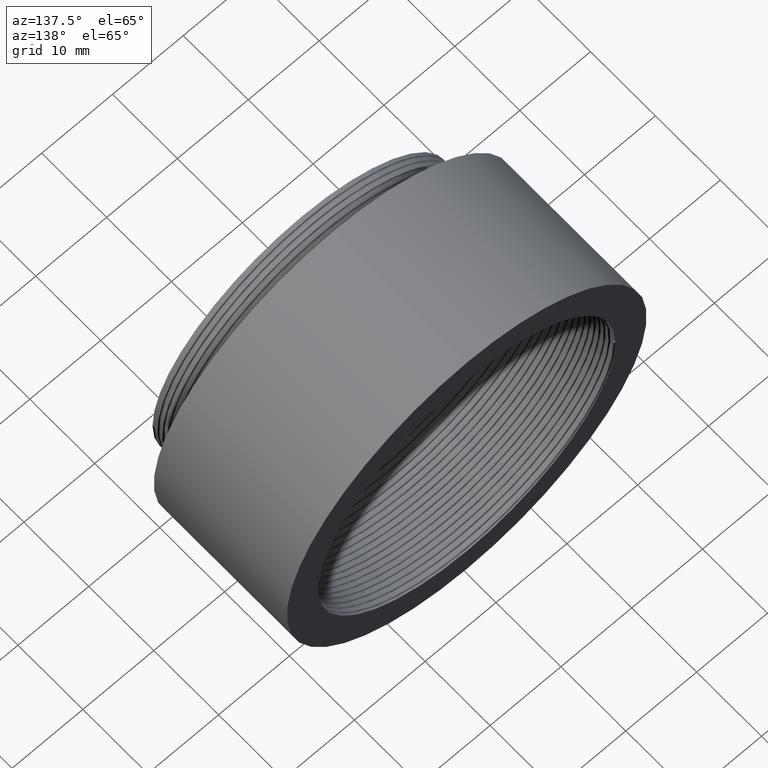
[diagram: clean part render]
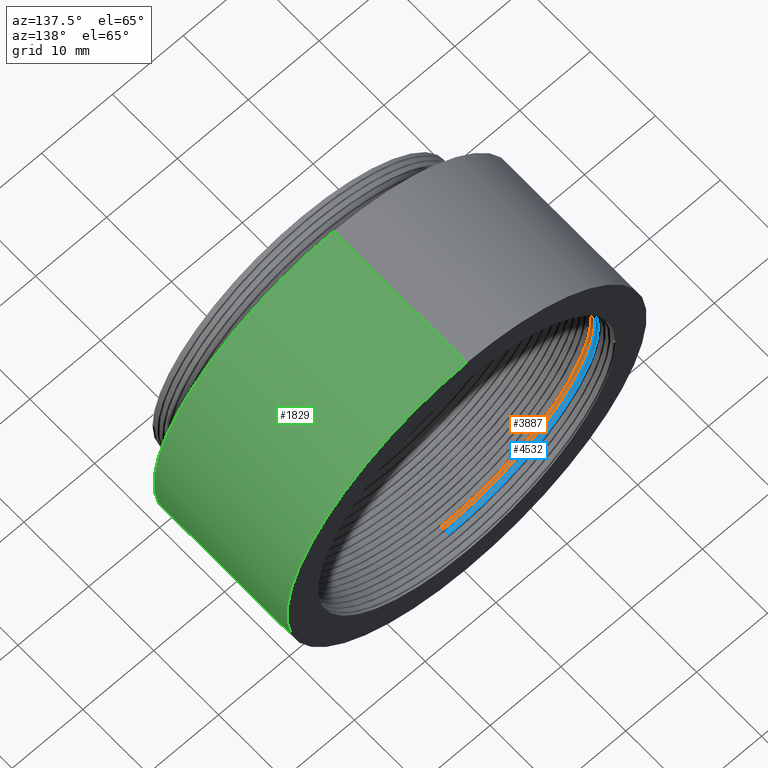
[diagram: same view with three faces highlighted in distinct colors, each labeled with its STEP entity id]
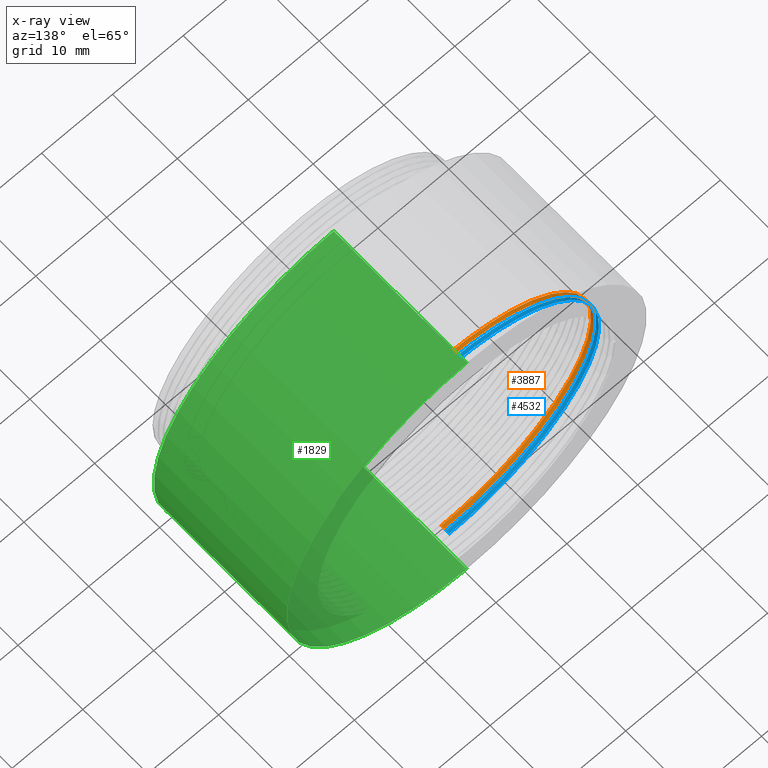
[diagram: x-ray of the same camera — body ghosted, the three highlighted faces saturated]
A machine part, auxiliary view with three faces highlighted in distinct colors.
The next image is the same camera in x-ray (body ghosted, the three faces saturated) — at least one of them is partly hidden behind the body in this view.
Their STEP definitions:

[orange] entity #3887 — the highlighted cylindrical surface (partial cylindrical patch) has radius 21 mm, axis along (-0, -1, -0).
#107 = CARTESIAN_POINT ( 'NONE',  ( -8.698484809834999609, 21.60937500000000355, -21.00000000000000355 ) ) ;
#219 = CARTESIAN_POINT ( 'NONE',  ( 2.571758278209441661E-15, 0.000000000000000000, 21.00000000000000000 ) ) ;
#583 = EDGE_LOOP ( 'NONE', ( #4594, #3261, #1232, #5136 ) ) ;
#659 = VERTEX_POINT ( 'NONE', #998 ) ;
#690 = DIRECTION ( 'NONE',  ( -0.000000000000000000, -1.000000000000000000, -0.000000000000000000 ) ) ;
#698 = CYLINDRICAL_SURFACE ( 'NONE', #1247, 21.00000000000000000 ) ;
#753 = CARTESIAN_POINT ( 'NONE',  ( -14.84924240491749536, 21.84375000000000000, 14.84924240491750247 ) ) ;
#928 = VECTOR ( 'NONE', #2953, 1000.000000000000000 ) ;
#971 = CARTESIAN_POINT ( 'NONE',  ( 0.000000000000000000, 0.000000000000000000, -21.00000000000000000 ) ) ;
#996 = CARTESIAN_POINT ( 'NONE',  ( -14.84924240491749892, 21.65625000000000000, -14.84924240491749892 ) ) ;
#998 = CARTESIAN_POINT ( 'NONE',  ( 3.857637417314162689E-15, 22.40968750086715033, 21.00000000000000000 ) ) ;
#1044 = VECTOR ( 'NONE', #690, 1000.000000000000000 ) ;
#1232 = ORIENTED_EDGE ( 'NONE', *, *, #6446, .T. ) ;
#1247 = AXIS2_PLACEMENT_3D ( 'NONE', #5352, #3871, #5936 ) ;
#1527 = CARTESIAN_POINT ( 'NONE',  ( -14.84924240491749892, 22.12843750086715033, -14.84924240491749892 ) ) ;
#1586 = CARTESIAN_POINT ( 'NONE',  ( -1.285879139104720831E-15, 22.03468750086715033, -21.00000000000000000 ) ) ;
#1598 = CARTESIAN_POINT ( 'NONE',  ( -1.285879139104720831E-15, 21.56250000000000000, -21.00000000000000000 ) ) ;
#1662 = CARTESIAN_POINT ( 'NONE',  ( -1.285879139104720831E-15, 22.03468750086715033, -21.00000000000000000 ) ) ;
#1948 = EDGE_CURVE ( 'NONE', #659, #3819, #2376, .T. ) ;
#2035 = CARTESIAN_POINT ( 'NONE',  ( -14.84924240491749536, 22.31593750086715033, 14.84924240491750247 ) ) ;
#2305 = CARTESIAN_POINT ( 'NONE',  ( -21.00000000000000000, 21.75000000000000000, 0.000000000000000000 ) ) ;
#2376 = LINE ( 'NONE', #219, #1044 ) ;
#2815 = CARTESIAN_POINT ( 'NONE',  ( -20.99999999999999645, 21.79687499999999645, 8.698484809835010267 ) ) ;
#2953 = DIRECTION ( 'NONE',  ( -0.000000000000000000, -1.000000000000000000, -0.000000000000000000 ) ) ;
#3212 = CARTESIAN_POINT ( 'NONE',  ( -1.285879139104720831E-15, 21.56250000000000000, -21.00000000000000000 ) ) ;
#3261 = ORIENTED_EDGE ( 'NONE', *, *, #1948, .T. ) ;
#3819 = VERTEX_POINT ( 'NONE', #4334 ) ;
#3871 = DIRECTION ( 'NONE',  ( -0.000000000000000000, -1.000000000000000000, -0.000000000000000000 ) ) ;
#3887 = ADVANCED_FACE ( 'NONE', ( #6002 ), #698, .F. ) ;
#4079 = CARTESIAN_POINT ( 'NONE',  ( -21.00000000000000000, 22.22218750086715033, 0.000000000000000000 ) ) ;
#4334 = CARTESIAN_POINT ( 'NONE',  ( 3.857637417314162689E-15, 21.93750000000000000, 21.00000000000000000 ) ) ;
#4350 = CARTESIAN_POINT ( 'NONE',  ( -21.00000000000000355, 21.70312499999999645, -8.698484809834997833 ) ) ;
#4587 = CARTESIAN_POINT ( 'NONE',  ( -20.99999999999999645, 22.26906250086715033, 8.698484809835010267 ) ) ;
#4594 = ORIENTED_EDGE ( 'NONE', *, *, #6484, .F. ) ;
#4621 = CARTESIAN_POINT ( 'NONE',  ( -8.698484809835058229, 22.08156250086714678, -20.99999999999994316 ) ) ;
#4855 =( BOUNDED_CURVE ( )  B_SPLINE_CURVE ( 2, ( #6462, #5370, #753, #2815, #2305, #4350, #996, #107, #1598 ),
 .UNSPECIFIED., .F., .F. ) 
 B_SPLINE_CURVE_WITH_KNOTS ( ( 3, 2, 2, 2, 3 ),
 ( 0.2374999999999999611, 0.2437499999999999667, 0.2500000000000000000, 0.2562499999999999778, 0.2625000000000000111 ),
 .UNSPECIFIED. ) 
 CURVE ( )  GEOMETRIC_REPRESENTATION_ITEM ( )  RATIONAL_B_SPLINE_CURVE ( ( 1.000000000000000444, 0.9238795325112864054, 1.000000000000000000, 0.9238795325112867385, 1.000000000000000000, 0.9238795325112867385, 1.000000000000000000, 0.9238795325112867385, 1.000000000000000000 ) ) 
 REPRESENTATION_ITEM ( '' )  );
#5051 =( BOUNDED_CURVE ( )  B_SPLINE_CURVE ( 2, ( #6283, #5709, #2035, #4587, #4079, #5224, #1527, #4621, #1662 ),
 .UNSPECIFIED., .F., .F. ) 
 B_SPLINE_CURVE_WITH_KNOTS ( ( 3, 2, 2, 2, 3 ),
 ( 0.1874999999999999167, 0.1937499999999999223, 0.1999999999999999556, 0.2062499999999999334, 0.2124999999999999389 ),
 .UNSPECIFIED. ) 
 CURVE ( )  GEOMETRIC_REPRESENTATION_ITEM ( )  RATIONAL_B_SPLINE_CURVE ( ( 1.000000000000001110, 0.9238795325112857393, 1.000000000000000000, 0.9238795325112867385, 1.000000000000000000, 0.9238795325112867385, 1.000000000000000000, 0.9238795325112874046, 0.9999999999999993339 ) ) 
 REPRESENTATION_ITEM ( '' )  );
#5082 = VERTEX_POINT ( 'NONE', #1586 ) ;
#5136 = ORIENTED_EDGE ( 'NONE', *, *, #5864, .F. ) ;
#5224 = CARTESIAN_POINT ( 'NONE',  ( -21.00000000000000355, 22.17531250086715744, -8.698484809834997833 ) ) ;
#5352 = CARTESIAN_POINT ( 'NONE',  ( 0.000000000000000000, 0.000000000000000000, 0.000000000000000000 ) ) ;
#5370 = CARTESIAN_POINT ( 'NONE',  ( -8.698484809834974740, 21.89062500000000000, 21.00000000000002842 ) ) ;
#5709 = CARTESIAN_POINT ( 'NONE',  ( -8.698484809834914344, 22.36281250086714678, 21.00000000000008882 ) ) ;
#5864 = EDGE_CURVE ( 'NONE', #5082, #6612, #6120, .T. ) ;
#5936 = DIRECTION ( 'NONE',  ( 0.000000000000000000, 0.000000000000000000, -1.000000000000000000 ) ) ;
#6002 = FACE_OUTER_BOUND ( 'NONE', #583, .T. ) ;
#6120 = LINE ( 'NONE', #971, #928 ) ;
#6283 = CARTESIAN_POINT ( 'NONE',  ( 3.857637417314162689E-15, 22.40968750086715033, 21.00000000000000000 ) ) ;
#6446 = EDGE_CURVE ( 'NONE', #3819, #6612, #4855, .T. ) ;
#6462 = CARTESIAN_POINT ( 'NONE',  ( 3.857637417314162689E-15, 21.93750000000000000, 21.00000000000000000 ) ) ;
#6484 = EDGE_CURVE ( 'NONE', #659, #5082, #5051, .T. ) ;
#6612 = VERTEX_POINT ( 'NONE', #3212 ) ;

[blue] entity #4532 — the highlighted cylindrical surface (partial cylindrical patch) has radius 21 mm, axis along (-0, -1, -0).
#86 = CARTESIAN_POINT ( 'NONE',  ( -14.84924240491749892, 22.40625000000000000, -14.84924240491749892 ) ) ;
#595 = VECTOR ( 'NONE', #2801, 1000.000000000000000 ) ;
#600 = VECTOR ( 'NONE', #5597, 1000.000000000000000 ) ;
#745 = CARTESIAN_POINT ( 'NONE',  ( -21.00000000000000000, 22.97218750086715033, 0.000000000000000000 ) ) ;
#958 = LINE ( 'NONE', #4545, #600 ) ;
#1110 = CARTESIAN_POINT ( 'NONE',  ( 3.857637417314162689E-15, 22.68750000000000000, 21.00000000000000000 ) ) ;
#1129 = CARTESIAN_POINT ( 'NONE',  ( -8.698484809834855724, 23.11281250086715033, 21.00000000000014566 ) ) ;
#1288 = EDGE_CURVE ( 'NONE', #5669, #2049, #2901, .T. ) ;
#1525 =( BOUNDED_CURVE ( )  B_SPLINE_CURVE ( 2, ( #1110, #2083, #5686, #5201, #1574, #4736, #86, #4122, #6192 ),
 .UNSPECIFIED., .F., .F. ) 
 B_SPLINE_CURVE_WITH_KNOTS ( ( 3, 2, 2, 2, 3 ),
 ( 0.1874999999999999445, 0.1937499999999999500, 0.1999999999999999556, 0.2062499999999999611, 0.2124999999999999667 ),
 .UNSPECIFIED. ) 
 CURVE ( )  GEOMETRIC_REPRESENTATION_ITEM ( )  RATIONAL_B_SPLINE_CURVE ( ( 1.000000000000000666, 0.9238795325112860723, 1.000000000000000000, 0.9238795325112867385, 1.000000000000000000, 0.9238795325112867385, 1.000000000000000000, 0.9238795325112870716, 0.9999999999999996669 ) ) 
 REPRESENTATION_ITEM ( '' )  );
#1574 = CARTESIAN_POINT ( 'NONE',  ( -21.00000000000000000, 22.50000000000000000, 0.000000000000000000 ) ) ;
#1930 = VERTEX_POINT ( 'NONE', #3295 ) ;
#2049 = VERTEX_POINT ( 'NONE', #2314 ) ;
#2083 = CARTESIAN_POINT ( 'NONE',  ( -8.698484809834942766, 22.64062499999999289, 21.00000000000005684 ) ) ;
#2314 = CARTESIAN_POINT ( 'NONE',  ( -1.285879139104720831E-15, 22.31250000000000000, -21.00000000000000000 ) ) ;
#2705 = CARTESIAN_POINT ( 'NONE',  ( -8.698484809835118625, 22.83156250086715033, -20.99999999999988631 ) ) ;
#2801 = DIRECTION ( 'NONE',  ( -0.000000000000000000, -1.000000000000000000, -0.000000000000000000 ) ) ;
#2803 = EDGE_CURVE ( 'NONE', #5584, #1930, #958, .T. ) ;
#2863 = AXIS2_PLACEMENT_3D ( 'NONE', #6238, #6306, #3599 ) ;
#2901 = LINE ( 'NONE', #3838, #595 ) ;
#3092 = EDGE_LOOP ( 'NONE', ( #3329, #3182, #5823, #3412 ) ) ;
#3174 = CARTESIAN_POINT ( 'NONE',  ( -14.84924240491749536, 23.06593750086714678, 14.84924240491750247 ) ) ;
#3182 = ORIENTED_EDGE ( 'NONE', *, *, #2803, .T. ) ;
#3295 = CARTESIAN_POINT ( 'NONE',  ( 3.857637417314162689E-15, 22.68750000000000000, 21.00000000000000000 ) ) ;
#3329 = ORIENTED_EDGE ( 'NONE', *, *, #6574, .F. ) ;
#3345 = EDGE_CURVE ( 'NONE', #1930, #2049, #1525, .T. ) ;
#3412 = ORIENTED_EDGE ( 'NONE', *, *, #1288, .F. ) ;
#3599 = DIRECTION ( 'NONE',  ( 0.000000000000000000, 0.000000000000000000, -1.000000000000000000 ) ) ;
#3715 = CARTESIAN_POINT ( 'NONE',  ( -1.285879139104720831E-15, 22.78468750086715033, -21.00000000000000000 ) ) ;
#3838 = CARTESIAN_POINT ( 'NONE',  ( 0.000000000000000000, 0.000000000000000000, -21.00000000000000000 ) ) ;
#4122 = CARTESIAN_POINT ( 'NONE',  ( -8.698484809835028031, 22.35937500000000000, -20.99999999999997513 ) ) ;
#4532 = ADVANCED_FACE ( 'NONE', ( #4744 ), #6342, .F. ) ;
#4545 = CARTESIAN_POINT ( 'NONE',  ( 2.571758278209441661E-15, 0.000000000000000000, 21.00000000000000000 ) ) ;
#4723 = CARTESIAN_POINT ( 'NONE',  ( -20.99999999999999645, 23.01906250086715033, 8.698484809835010267 ) ) ;
#4736 = CARTESIAN_POINT ( 'NONE',  ( -21.00000000000000355, 22.45312499999999645, -8.698484809834997833 ) ) ;
#4744 = FACE_OUTER_BOUND ( 'NONE', #3092, .T. ) ;
#5189 = CARTESIAN_POINT ( 'NONE',  ( 3.857637417314162689E-15, 23.15968750086715033, 21.00000000000000000 ) ) ;
#5201 = CARTESIAN_POINT ( 'NONE',  ( -20.99999999999999645, 22.54687499999999289, 8.698484809835010267 ) ) ;
#5584 = VERTEX_POINT ( 'NONE', #6233 ) ;
#5597 = DIRECTION ( 'NONE',  ( -0.000000000000000000, -1.000000000000000000, -0.000000000000000000 ) ) ;
#5669 = VERTEX_POINT ( 'NONE', #6437 ) ;
#5686 = CARTESIAN_POINT ( 'NONE',  ( -14.84924240491749536, 22.59375000000000000, 14.84924240491750247 ) ) ;
#5752 =( BOUNDED_CURVE ( )  B_SPLINE_CURVE ( 2, ( #5189, #1129, #3174, #4723, #745, #5840, #5806, #2705, #3715 ),
 .UNSPECIFIED., .F., .F. ) 
 B_SPLINE_CURVE_WITH_KNOTS ( ( 3, 2, 2, 2, 3 ),
 ( 0.1374999999999998723, 0.1437499999999998501, 0.1499999999999998557, 0.1562499999999998890, 0.1624999999999998945 ),
 .UNSPECIFIED. ) 
 CURVE ( )  GEOMETRIC_REPRESENTATION_ITEM ( )  RATIONAL_B_SPLINE_CURVE ( ( 1.000000000000001776, 0.9238795325112850731, 1.000000000000000000, 0.9238795325112867385, 1.000000000000000000, 0.9238795325112867385, 1.000000000000000000, 0.9238795325112880708, 0.9999999999999986677 ) ) 
 REPRESENTATION_ITEM ( '' )  );
#5806 = CARTESIAN_POINT ( 'NONE',  ( -14.84924240491749892, 22.87843750086715033, -14.84924240491749892 ) ) ;
#5823 = ORIENTED_EDGE ( 'NONE', *, *, #3345, .T. ) ;
#5840 = CARTESIAN_POINT ( 'NONE',  ( -21.00000000000000355, 22.92531250086715389, -8.698484809834997833 ) ) ;
#6192 = CARTESIAN_POINT ( 'NONE',  ( -1.285879139104720831E-15, 22.31250000000000000, -21.00000000000000000 ) ) ;
#6233 = CARTESIAN_POINT ( 'NONE',  ( 3.857637417314162689E-15, 23.15968750086715033, 21.00000000000000000 ) ) ;
#6238 = CARTESIAN_POINT ( 'NONE',  ( 0.000000000000000000, 0.000000000000000000, 0.000000000000000000 ) ) ;
#6306 = DIRECTION ( 'NONE',  ( -0.000000000000000000, -1.000000000000000000, -0.000000000000000000 ) ) ;
#6342 = CYLINDRICAL_SURFACE ( 'NONE', #2863, 21.00000000000000000 ) ;
#6437 = CARTESIAN_POINT ( 'NONE',  ( -1.285879139104720831E-15, 22.78468750086715033, -21.00000000000000000 ) ) ;
#6574 = EDGE_CURVE ( 'NONE', #5584, #5669, #5752, .T. ) ;

[green] entity #1829 — the highlighted cylindrical surface (partial cylindrical patch) has radius 25.4 mm, axis along (-0, -1, -0).
#91 = DIRECTION ( 'NONE',  ( -0.000000000000000000, -1.000000000000000000, -0.000000000000000000 ) ) ;
#285 = ORIENTED_EDGE ( 'NONE', *, *, #418, .F. ) ;
#418 = EDGE_CURVE ( 'NONE', #6165, #3578, #4932, .T. ) ;
#494 = VECTOR ( 'NONE', #2698, 1000.000000000000000 ) ;
#754 = VERTEX_POINT ( 'NONE', #6451 ) ;
#809 = CIRCLE ( 'NONE', #2526, 25.39999999999999858 ) ;
#889 = DIRECTION ( 'NONE',  ( -0.000000000000000000, -1.000000000000000000, -0.000000000000000000 ) ) ;
#978 = ORIENTED_EDGE ( 'NONE', *, *, #2280, .T. ) ;
#1081 = CYLINDRICAL_SURFACE ( 'NONE', #1903, 25.39999999999999858 ) ;
#1156 = CARTESIAN_POINT ( 'NONE',  ( 3.110602869834276865E-15, 0.000000000000000000, 25.39999999999999858 ) ) ;
#1394 = CARTESIAN_POINT ( 'NONE',  ( 0.000000000000000000, 5.000000000000000888, 0.000000000000000000 ) ) ;
#1741 = DIRECTION ( 'NONE',  ( -0.000000000000000000, -1.000000000000000000, -0.000000000000000000 ) ) ;
#1829 = ADVANCED_FACE ( 'NONE', ( #2657 ), #1081, .T. ) ;
#1903 = AXIS2_PLACEMENT_3D ( 'NONE', #6198, #91, #2154 ) ;
#1965 = DIRECTION ( 'NONE',  ( 0.000000000000000000, 0.000000000000000000, -1.000000000000000000 ) ) ;
#2154 = DIRECTION ( 'NONE',  ( 0.000000000000000000, 0.000000000000000000, -1.000000000000000000 ) ) ;
#2229 = LINE ( 'NONE', #1156, #494 ) ;
#2244 = ORIENTED_EDGE ( 'NONE', *, *, #3755, .F. ) ;
#2280 = EDGE_CURVE ( 'NONE', #3749, #754, #2229, .T. ) ;
#2522 = CARTESIAN_POINT ( 'NONE',  ( 0.000000000000000000, 25.50000000000000000, 0.000000000000000000 ) ) ;
#2526 = AXIS2_PLACEMENT_3D ( 'NONE', #1394, #889, #1965 ) ;
#2657 = FACE_OUTER_BOUND ( 'NONE', #6421, .T. ) ;
#2698 = DIRECTION ( 'NONE',  ( -0.000000000000000000, -1.000000000000000000, -0.000000000000000000 ) ) ;
#2746 = CIRCLE ( 'NONE', #6529, 25.39999999999999858 ) ;
#3290 = CARTESIAN_POINT ( 'NONE',  ( 0.000000000000000000, 0.000000000000000000, -25.39999999999999858 ) ) ;
#3578 = VERTEX_POINT ( 'NONE', #5534 ) ;
#3749 = VERTEX_POINT ( 'NONE', #6013 ) ;
#3755 = EDGE_CURVE ( 'NONE', #3578, #754, #809, .T. ) ;
#4105 = ORIENTED_EDGE ( 'NONE', *, *, #4358, .T. ) ;
#4358 = EDGE_CURVE ( 'NONE', #6165, #3749, #2746, .T. ) ;
#4660 = CARTESIAN_POINT ( 'NONE',  ( 0.000000000000000000, 25.50000000000000000, -25.39999999999999858 ) ) ;
#4932 = LINE ( 'NONE', #3290, #6087 ) ;
#5207 = DIRECTION ( 'NONE',  ( -0.000000000000000000, -1.000000000000000000, -0.000000000000000000 ) ) ;
#5534 = CARTESIAN_POINT ( 'NONE',  ( 0.000000000000000000, 5.000000000000000888, -25.39999999999999858 ) ) ;
#6013 = CARTESIAN_POINT ( 'NONE',  ( 3.110602869834276865E-15, 25.50000000000000000, 25.39999999999999858 ) ) ;
#6087 = VECTOR ( 'NONE', #1741, 1000.000000000000000 ) ;
#6165 = VERTEX_POINT ( 'NONE', #4660 ) ;
#6198 = CARTESIAN_POINT ( 'NONE',  ( 0.000000000000000000, 0.000000000000000000, 0.000000000000000000 ) ) ;
#6202 = DIRECTION ( 'NONE',  ( 0.000000000000000000, 0.000000000000000000, -1.000000000000000000 ) ) ;
#6421 = EDGE_LOOP ( 'NONE', ( #4105, #978, #2244, #285 ) ) ;
#6451 = CARTESIAN_POINT ( 'NONE',  ( 3.110602869834276865E-15, 5.000000000000000888, 25.39999999999999858 ) ) ;
#6529 = AXIS2_PLACEMENT_3D ( 'NONE', #2522, #5207, #6202 ) ;